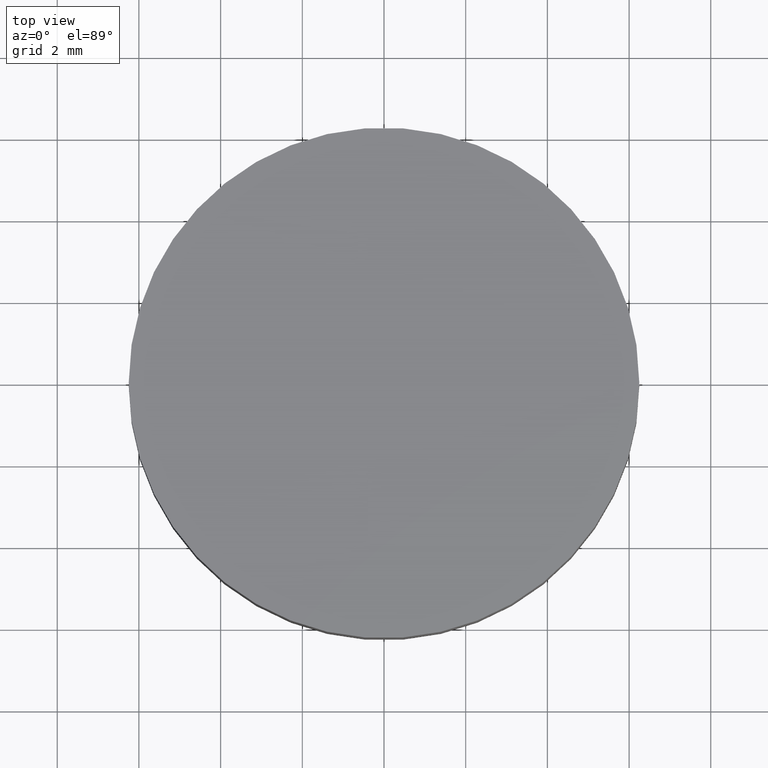
[diagram: clean part render]
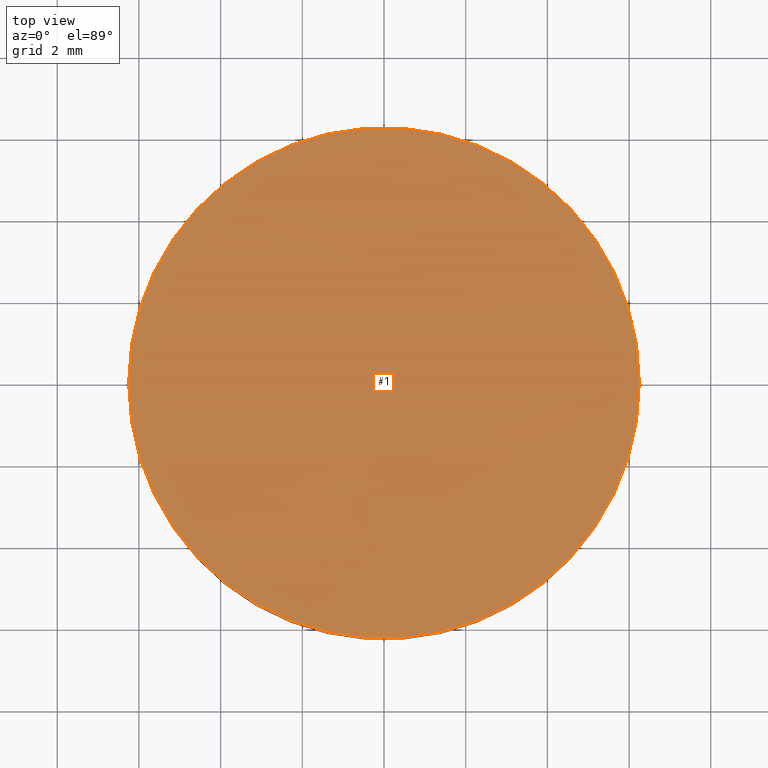
[diagram: same view with one face highlighted and labeled with its STEP entity id]
A machine part, top view. The second image highlights one B-rep face of the part: STEP entity #1.
In plain terms, the highlighted planar face has unit normal (0, 0, 1).
Its self-contained STEP definition (entity closure, byte-faithful):
#1 = ADVANCED_FACE ( 'NONE', ( #67 ), #134, .T. ) ;
#14 = CARTESIAN_POINT ( 'NONE',  ( 6.250000000000000000, 7.654042494670957600E-016, 3.000000000000000000 ) ) ;
#29 = EDGE_CURVE ( 'NONE', #91, #36, #120, .T. ) ;
#31 = DIRECTION ( 'NONE',  ( 1.000000000000000000, 0.0000000000000000000, 0.0000000000000000000 ) ) ;
#32 = ORIENTED_EDGE ( 'NONE', *, *, #29, .T. ) ;
#36 = VERTEX_POINT ( 'NONE', #51 ) ;
#39 = CIRCLE ( 'NONE', #74, 6.250000000000000000 ) ;
#41 = DIRECTION ( 'NONE',  ( 1.000000000000000000, 0.0000000000000000000, -0.0000000000000000000 ) ) ;
#45 = CARTESIAN_POINT ( 'NONE',  ( 0.0000000000000000000, 0.0000000000000000000, 3.000000000000000000 ) ) ;
#51 = CARTESIAN_POINT ( 'NONE',  ( -6.250000000000000000, 0.0000000000000000000, 3.000000000000000000 ) ) ;
#52 = DIRECTION ( 'NONE',  ( 1.000000000000000000, 0.0000000000000000000, 0.0000000000000000000 ) ) ;
#54 = AXIS2_PLACEMENT_3D ( 'NONE', #45, #82, #31 ) ;
#67 = FACE_OUTER_BOUND ( 'NONE', #118, .T. ) ;
#74 = AXIS2_PLACEMENT_3D ( 'NONE', #114, #93, #52 ) ;
#82 = DIRECTION ( 'NONE',  ( 0.0000000000000000000, 0.0000000000000000000, 1.000000000000000000 ) ) ;
#91 = VERTEX_POINT ( 'NONE', #14 ) ;
#93 = DIRECTION ( 'NONE',  ( 0.0000000000000000000, 0.0000000000000000000, 1.000000000000000000 ) ) ;
#103 = DIRECTION ( 'NONE',  ( 0.0000000000000000000, 0.0000000000000000000, 1.000000000000000000 ) ) ;
#111 = CARTESIAN_POINT ( 'NONE',  ( 0.0000000000000000000, 0.0000000000000000000, 3.000000000000000000 ) ) ;
#114 = CARTESIAN_POINT ( 'NONE',  ( 0.0000000000000000000, 0.0000000000000000000, 3.000000000000000000 ) ) ;
#118 = EDGE_LOOP ( 'NONE', ( #139, #32 ) ) ;
#119 = EDGE_CURVE ( 'NONE', #36, #91, #39, .T. ) ;
#120 = CIRCLE ( 'NONE', #54, 6.250000000000000000 ) ;
#134 = PLANE ( 'NONE',  #138 ) ;
#138 = AXIS2_PLACEMENT_3D ( 'NONE', #111, #103, #41 ) ;
#139 = ORIENTED_EDGE ( 'NONE', *, *, #119, .T. ) ;